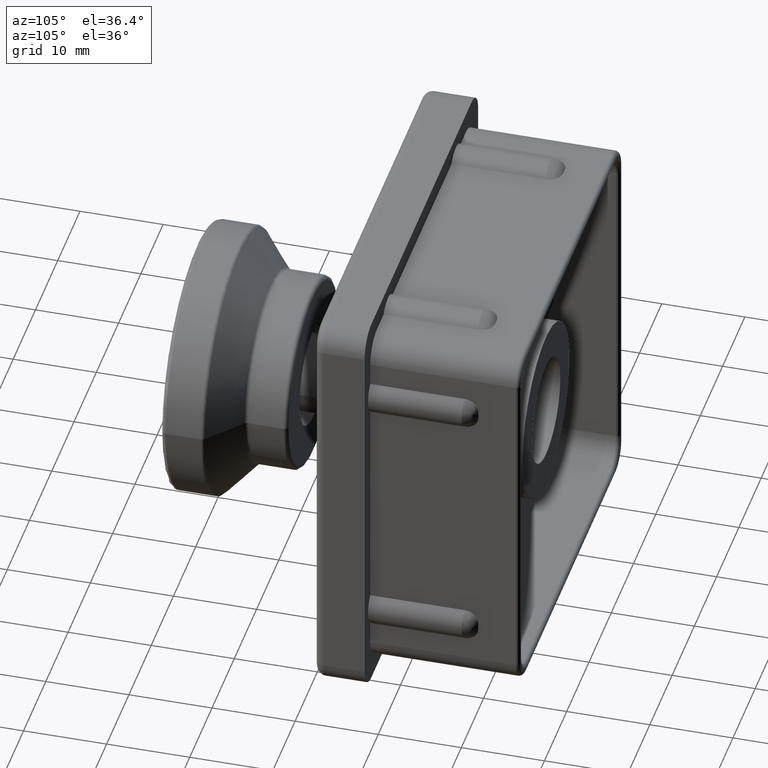
[diagram: clean part render]
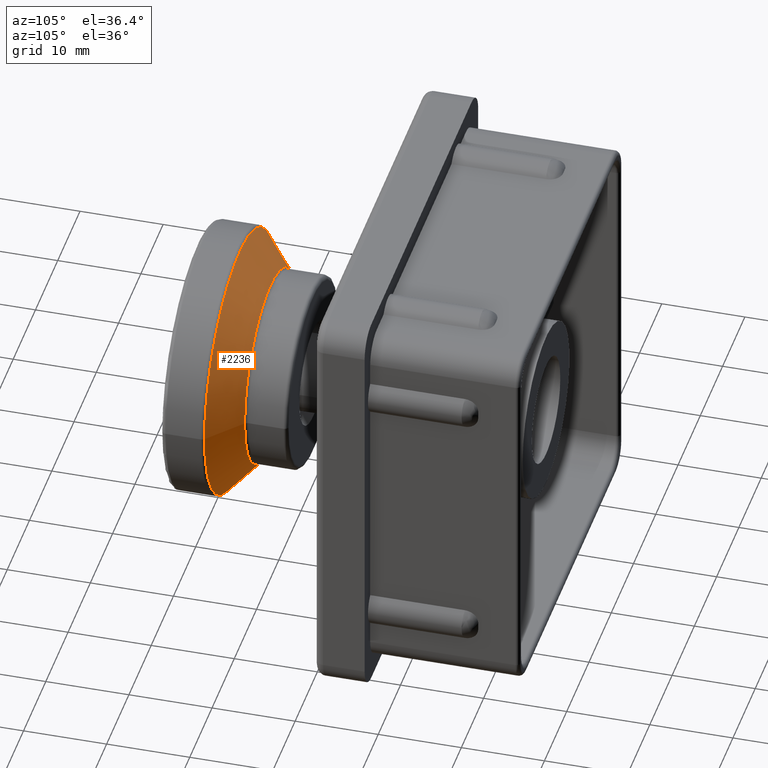
[diagram: same view with one face highlighted and labeled with its STEP entity id]
A machine part, auxiliary view. The second image highlights one B-rep face of the part: STEP entity #2236.
In plain terms, the highlighted conical surface has half-angle 48.366 deg.
Its self-contained STEP definition (entity closure, byte-faithful):
#35=CONICAL_SURFACE('',#2393,13.75,48.3664606634298);
#43=FACE_BOUND('',#427,.T.);
#80=CIRCLE('',#2392,15.832181919415);
#81=CIRCLE('',#2394,11.667818080585);
#284=FACE_OUTER_BOUND('',#426,.T.);
#426=EDGE_LOOP('',(#1598));
#427=EDGE_LOOP('',(#1599));
#995=VERTEX_POINT('',#3577);
#996=VERTEX_POINT('',#3580);
#1238=EDGE_CURVE('',#995,#995,#80,.T.);
#1239=EDGE_CURVE('',#996,#996,#81,.T.);
#1598=ORIENTED_EDGE('',*,*,#1239,.F.);
#1599=ORIENTED_EDGE('',*,*,#1238,.F.);
#2236=ADVANCED_FACE('',(#284,#43),#35,.T.);
#2392=AXIS2_PLACEMENT_3D('',#3578,#2728,#2729);
#2393=AXIS2_PLACEMENT_3D('',#3579,#2730,#2731);
#2394=AXIS2_PLACEMENT_3D('',#3581,#2732,#2733);
#2728=DIRECTION('center_axis',(7.01244484352275E-17,-1.,7.01244484352276E-17));
#2729=DIRECTION('ref_axis',(-1.,-7.01244484352275E-17,0.));
#2730=DIRECTION('center_axis',(6.34413156928661E-17,-1.,0.));
#2731=DIRECTION('ref_axis',(1.,0.,0.));
#2732=DIRECTION('center_axis',(0.,1.,0.));
#2733=DIRECTION('ref_axis',(-1.,0.,0.));
#3577=CARTESIAN_POINT('',(15.832181919415,5.1491716271867,2.46519032881566E-31));
#3578=CARTESIAN_POINT('Origin',(-1.11022302462516E-15,5.1491716271867,-1.93888309111301E-15));
#3579=CARTESIAN_POINT('Origin',(-4.44089209850063E-16,7.,0.));
#3580=CARTESIAN_POINT('',(11.667818080585,8.8508283728133,-2.85779121308442E-15));
#3581=CARTESIAN_POINT('Origin',(0.,8.8508283728133,-1.42889560654221E-15));